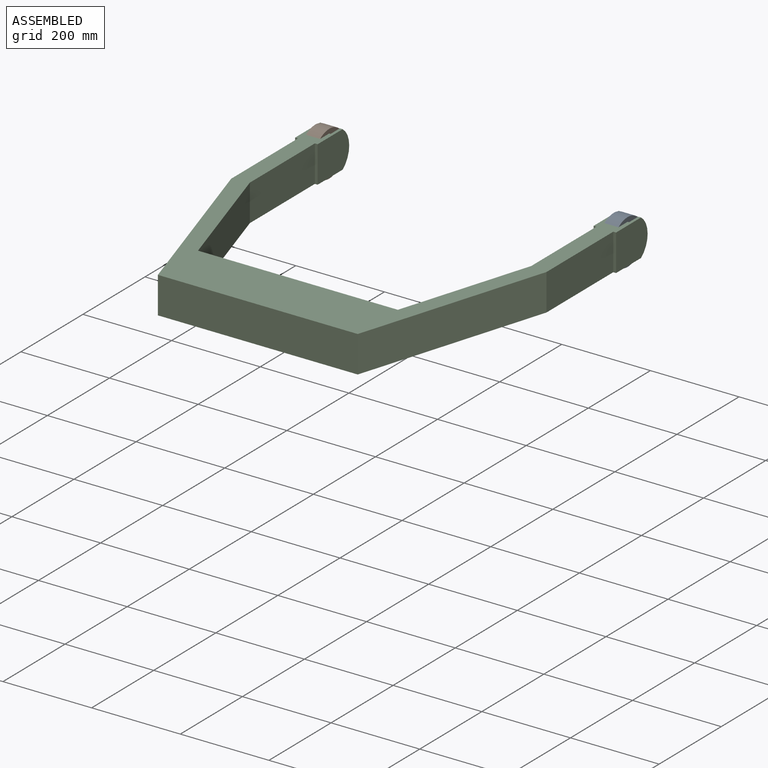
[diagram: assembled view]
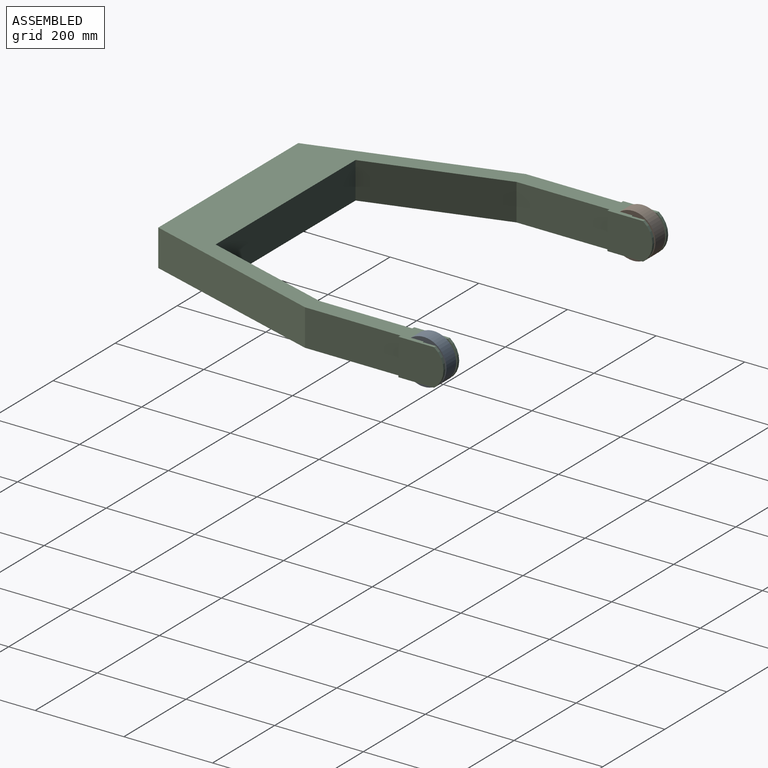
[diagram: assembled view, second angle]
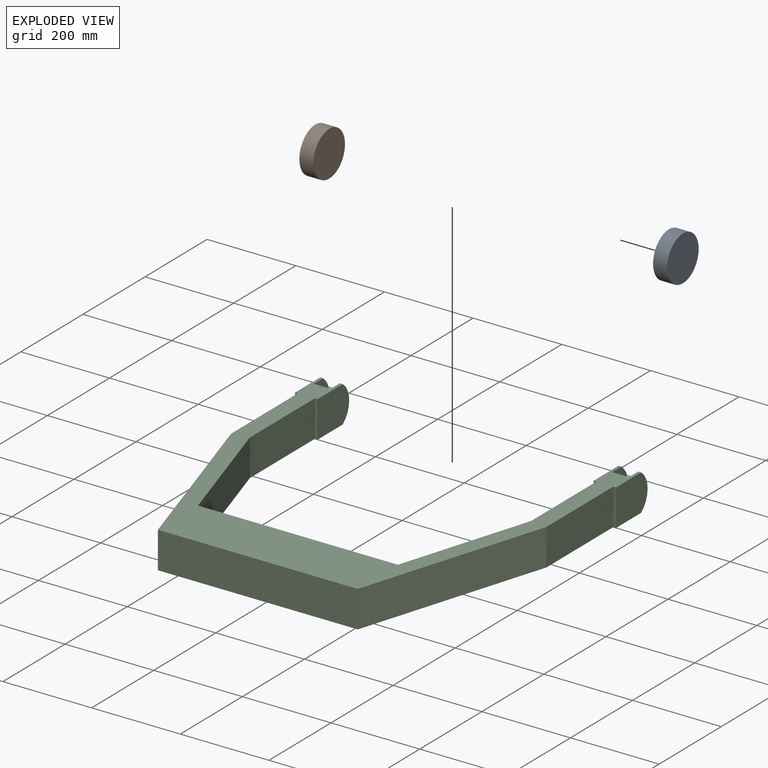
[diagram: exploded view]
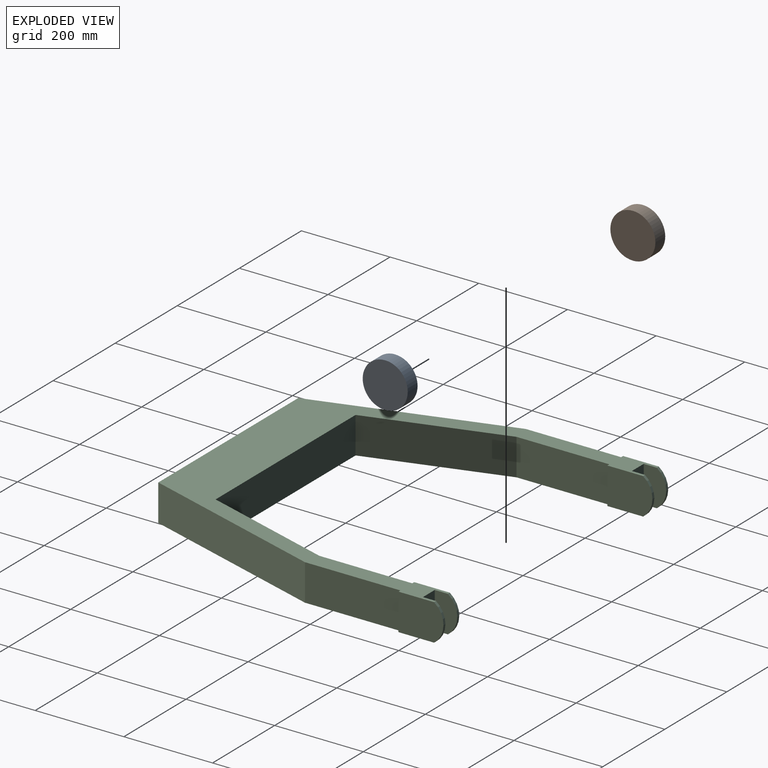
[diagram: exploded view, second angle]
ASSEMBLY  parts=3 mates=2
PART A: 3 faces, bbox 31.8x101.6x101.6 mm
  f0: cylinder r=50.8mm len=101.6mm, axis (-1,0,0), area 10134.1mm2, adj f1,f2
  f1: plane 101.6x101.6mm, normal (1,0,0), area 8107.3mm2, adj f0
  f2: plane 101.6x101.6mm, normal (-1,0,0), area 8107.3mm2, adj f0
PART B: same geometry as A
PART C: 30 faces, bbox 723.9x738.8x82.6 mm
  f0: plane 298.45x92.08mm, normal (0.96,0.29,0), area 25782.9mm2, adj f1,f11,f12,f13
  f1: plane 209.55x82.55mm, normal (1,0,0), area 17298.4mm2, adj f0,f12,f13,f18
  f2: plane 82.55x38.1mm, normal (0,1,0), area 3145.2mm2, adj f12,f13,f14,f21
  f3: plane 215.29x82.55mm, normal (-1,0,0), area 17772.5mm2, adj f4,f12,f13,f15
  f4: plane 421.95x130.18mm, normal (-0.96,-0.29,0), area 36451.6mm2, adj f3,f5,f12,f13
  f5: plane 450.85x82.55mm, normal (0,-1,0), area 37217.7mm2, adj f4,f6,f12,f13
  f6: plane 421.95x130.18mm, normal (0.96,-0.29,0), area 36451.6mm2, adj f5,f7,f12,f13
  f7: plane 215.29x82.55mm, normal (1,0,0), area 17772.5mm2, adj f6,f12,f13,f22
  f8: plane 82.55x38.1mm, normal (0,1,0), area 3145.2mm2, adj f12,f13,f25,f26
  f9: plane 209.55x82.55mm, normal (-1,0,0), area 17298.4mm2, adj f10,f12,f13,f27
  f10: plane 298.45x92.08mm, normal (-0.96,0.29,0), area 25782.9mm2, adj f9,f11,f12,f13
  f11: plane 450.85x82.55mm, normal (0,1,0), area 37217.7mm2, adj f0,f10,f12,f13
  f12: plane 723.9x717.65mm, normal (0,0,1), area 109091.5mm2, adj f0,f1,f2,f3,f4,f5,f6,f7
  f13: plane 723.9x717.65mm, normal (0,0,-1), area 109091.5mm2, adj f0,f1,f2,f3,f4,f5,f6,f7
  f14: plane 82.55x50.8mm, normal (1,0,0), area 3669.9mm2, adj f2,f12,f13,f16
  f15: plane 82.55x6.35mm, normal (0,-1,0), area 524.2mm2, adj f3,f12,f13,f17
  f16: cylinder r=50.8mm len=82.55mm, axis (1,0,0), area 611.9mm2, adj f12,f13,f14,f17
  f17: plane 101.6x82.55mm, normal (-1,0,0), area 7863.4mm2, adj f12,f13,f15,f16
  f18: plane 82.55x6.35mm, normal (0,-1,0), area 524.2mm2, adj f1,f12,f13,f20
  f19: cylinder r=50.8mm len=82.55mm, axis (-1,0,0), area 611.9mm2, adj f12,f13,f20,f21
  f20: plane 101.6x82.55mm, normal (1,0,0), area 7863.4mm2, adj f12,f13,f18,f19
  f21: plane 82.55x50.8mm, normal (-1,0,0), area 3669.9mm2, adj f2,f12,f13,f19
  f22: plane 82.55x6.35mm, normal (0,-1,0), area 524.2mm2, adj f7,f12,f13,f24
  f23: cylinder r=50.8mm len=82.55mm, axis (-1,0,0), area 611.9mm2, adj f12,f13,f24,f25
  f24: plane 101.6x82.55mm, normal (1,0,0), area 7863.4mm2, adj f12,f13,f22,f23
  f25: plane 82.55x50.8mm, normal (-1,0,0), area 3669.9mm2, adj f8,f12,f13,f23
  f26: plane 82.55x50.8mm, normal (1,0,0), area 3669.9mm2, adj f8,f12,f13,f28
  f27: plane 82.55x6.35mm, normal (0,-1,0), area 524.2mm2, adj f9,f12,f13,f29
  f28: cylinder r=50.8mm len=82.55mm, axis (1,0,0), area 611.9mm2, adj f12,f13,f26,f29
  f29: plane 101.6x82.55mm, normal (-1,0,0), area 7863.4mm2, adj f12,f13,f27,f28
PLACE A t=(336.55,623.42,0)mm
PLACE B t=(-336.55,623.42,0)mm
PLACE C at identity
MATE fastened A.f0 <-> C.f23  axis (-1,0,0) through (320.67,623.42,0)mm
MATE fastened B.f0 <-> C.f23  axis (1,0,0) through (-320.67,623.42,0)mm
